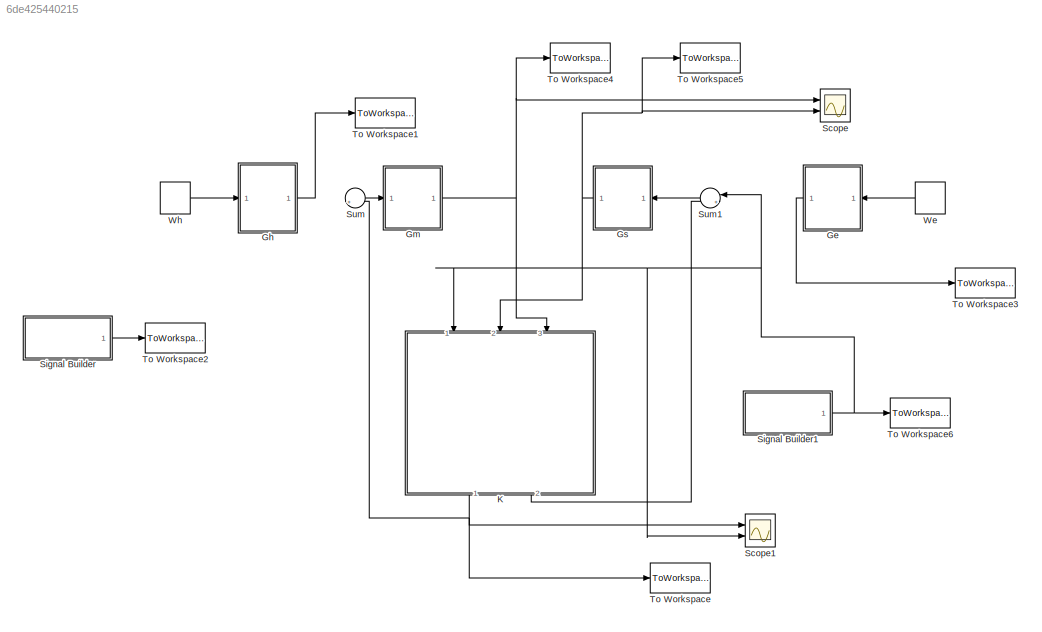
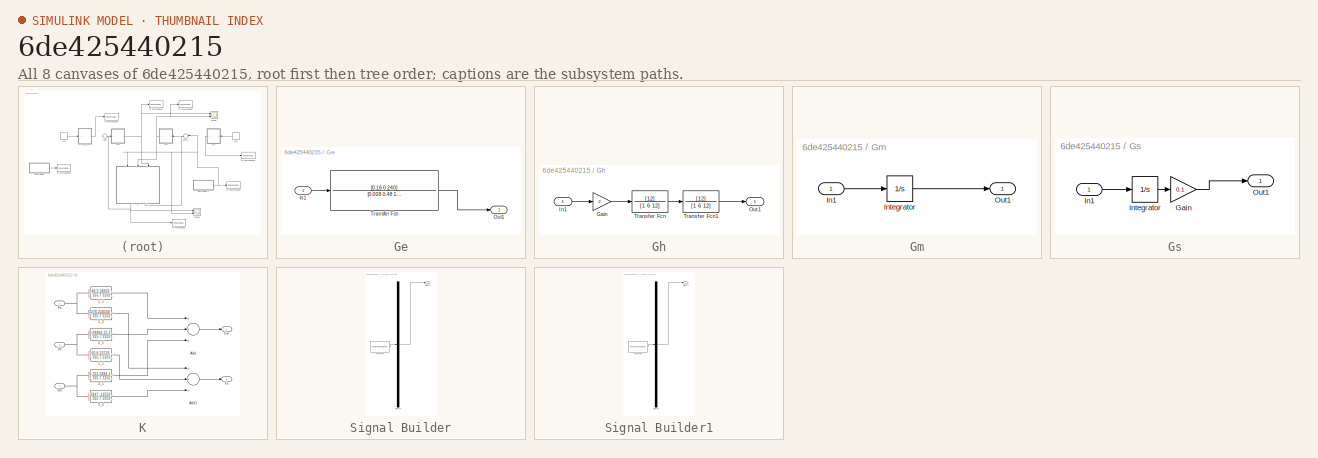
[diagram: thumbnail index - all 8 canvases of the model, root first then tree order]
MODEL slx_6de425440215
KIND model
CONFIG AbsTol = auto
CONFIG FixedStep = auto
CONFIG MaxStep = auto
CONFIG MinStep = auto
CONFIG RelTol = 1e-3
CONFIG SampleTimeConstraint = Unconstrained
CONFIG Solver = VariableStepAuto
CONFIG SolverMode = Auto
CONFIG SolverName = VariableStepAuto
CONFIG StartTime = 0.0
CONFIG StopTime = 10
BLOCK [SubSystem] Ge
  Ports = [1, 1]
  RequestExecContextInheritance = off
  Variant = off
BLOCK [Inport] Ge/In1
  IconDisplay = Port number
BLOCK [Outport] Ge/Out1
  IconDisplay = Port number
BLOCK [TransferFcn] Ge/Transfer Fcn
  Denominator = [0.008 0.48 12 120]
  Numerator = [0.16 0 240]
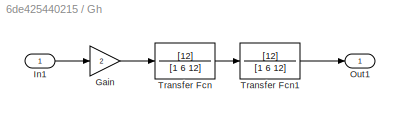
BLOCK [SubSystem] Gh
  Ports = [1, 1]
  RequestExecContextInheritance = off
  Variant = off
BLOCK [Gain] Gh/Gain
  Gain = 2
  OutDataTypeStr = Inherit: Inherit via internal rule
  ParamDataTypeStr = Inherit: Inherit via internal rule
  SaturateOnIntegerOverflow = off
BLOCK [Inport] Gh/In1
  IconDisplay = Port number
BLOCK [Outport] Gh/Out1
  IconDisplay = Port number
BLOCK [TransferFcn] Gh/Transfer Fcn
  Denominator = [1 6 12]
  Numerator = [12]
BLOCK [TransferFcn] Gh/Transfer Fcn1
  Denominator = [1 6 12]
  Numerator = [12]
BLOCK [SubSystem] Gm
  Ports = [1, 1]
  RequestExecContextInheritance = off
  Variant = off
BLOCK [Inport] Gm/In1
  IconDisplay = Port number
BLOCK [Integrator] Gm/Integrator
  Ports = [1, 1]
BLOCK [Outport] Gm/Out1
  IconDisplay = Port number
BLOCK [SubSystem] Gs
  Ports = [1, 1]
  RequestExecContextInheritance = off
  Variant = off
BLOCK [Gain] Gs/Gain
  Gain = 0.1
  OutDataTypeStr = Inherit: Inherit via internal rule
  ParamDataTypeStr = Inherit: Inherit via internal rule
  SaturateOnIntegerOverflow = off
BLOCK [Inport] Gs/In1
  IconDisplay = Port number
BLOCK [Integrator] Gs/Integrator
  Ports = [1, 1]
BLOCK [Outport] Gs/Out1
  IconDisplay = Port number
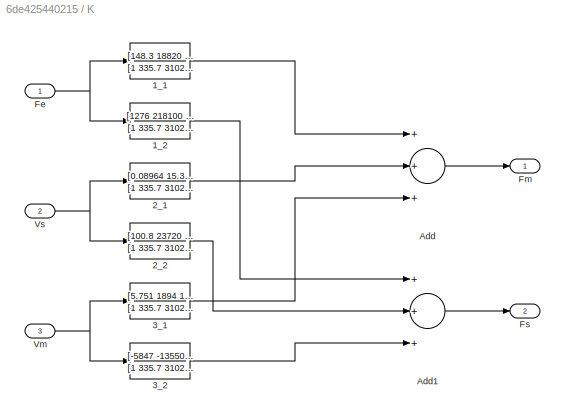
BLOCK [SubSystem] K
  Ports = [3, 2]
  RequestExecContextInheritance = off
  Variant = off
BLOCK [TransferFcn] K/1_1
  Denominator = [1 335.7 31020 1138000 4.555*10^7 6.604*10^8 4.954*10^9 2.22*10^10 6.027*10^10 8.233*10^10]
  Numerator = [148.3 18820 716100 3.695*10^7 5.545*10^8 4.28*10^9 1.985*10^10 5.593*10^10 7.853*10^10]
BLOCK [TransferFcn] K/1_2
  Denominator = [1 335.7 31020 1138000 4.555*10^7 6.604*10^8 4.954*10^9 2.22*10^10 6.027*10^10 8.233*10^10]
  Numerator = [1276 218100 7304000 3.914*10^8 4.397*10^9 2.309*10^10 6.563*10^10 1.053*10^11 8.622*10^10]
BLOCK [TransferFcn] K/2_1
  Denominator = [1 335.7 31020 1138000 4.555*10^7 6.604*10^8 4.954*10^9 2.22*10^10 6.027*10^10 8.233*10^10]
  Numerator = [0.08964 15.32 908 29960 394400 2858000 1.273*10^7 3.47*10^7 4.709*10^7]
BLOCK [TransferFcn] K/2_2
  Denominator = [1 335.7 31020 1138000 4.555*10^7 6.604*10^8 4.954*10^9 2.22*10^10 6.027*10^10 8.233*10^10]
  Numerator = [100.8 23720 750500 3.959*10^7 6.141*10^8 4.739*10^9 2.158*10^10 5.934*10^10 8.215*10^10]
BLOCK [TransferFcn] K/3_1
  Denominator = [1 335.7 31020 1138000 4.555*10^7 6.604*10^8 4.954*10^9 2.22*10^10 6.027*10^10 8.233*10^10]
  Numerator = [5.751 1894 166900 5602000 2.286*10^8 2.508*10^9 1.306*10^10 3.533*10^10 4.325*10^10]
BLOCK [TransferFcn] K/3_2
  Denominator = [1 335.7 31020 1138000 4.555*10^7 6.604*10^8 4.954*10^9 2.22*10^10 6.027*10^10 8.233*10^10]
  Numerator = [-5847 -1355000 -3.831*10^7 -2.155*10^9 -2.756*10^10 -1.678*10^11 -5.494*10^11 -8.528*10^11 -7.986*10^10]
BLOCK [Sum] K/Add
  InputSameDT = off
  Inputs = +++
  OutDataTypeStr = Inherit: Inherit via internal rule
  Ports = [3, 1]
  SaturateOnIntegerOverflow = off
BLOCK [Sum] K/Add1
  InputSameDT = off
  Inputs = +++
  OutDataTypeStr = Inherit: Inherit via internal rule
  Ports = [3, 1]
  SaturateOnIntegerOverflow = off
BLOCK [Inport] K/Fe
  IconDisplay = Port number
BLOCK [Outport] K/Fm
  IconDisplay = Port number
BLOCK [Outport] K/Fs
  IconDisplay = Port number
  Port = 2
BLOCK [Inport] K/Vm
  IconDisplay = Port number
  Port = 3
BLOCK [Inport] K/Vs
  IconDisplay = Port number
  Port = 2
BLOCK [Scope] Scope
  NumInputPorts = 2
  Ports = [2]
  ScopeSpecificationString = Simulink.scopes.TimeScopeBlockCfg('CurrentConfiguration', extmgr.ConfigurationSet(extmgr.Configuration('Core','General UI',true),extmgr.Configuration('Core','Source UI',true),extmgr.Configuration('Sources','WiredSimulink',true),extmgr.Configuration('Visuals','Time Domain',true,'SerializedDisplays',{struct('MinYLimReal','-0.15665','MaxYLimReal','1.40989','YLabelReal','','MinYLimMag','0.00000','MaxY...<+1427ch>
BLOCK [Scope] Scope1
  NumInputPorts = 2
  Ports = [2]
  ScopeSpecificationString = Simulink.scopes.TimeScopeBlockCfg('CurrentConfiguration', extmgr.ConfigurationSet(extmgr.Configuration('Core','General UI',true),extmgr.Configuration('Core','Source UI',true),extmgr.Configuration('Sources','WiredSimulink',true,'DataLoggingVariableName','ScopeData1'),extmgr.Configuration('Visuals','Time Domain',true,'SerializedDisplays',{struct('MinYLimReal','-3.53124','MaxYLimReal','11.53042','YLa...<+1482ch>
BLOCK [SubSystem] Signal Builder
  ClipboardFcn = sigbuilder_block('clipboard');
  CloseFcn = sigbuilder_block('close');
  ContinueFcn = sigbuilder_block('continue');
  CopyFcn = sigbuilder_block('copy');
  DeleteFcn = sigbuilder_block('delete');
  LoadFcn = sigbuilder_block('load');
  MaskHideContents = on
  ModelCloseFcn = sigbuilder_block('modelClose');
  NameChangeFcn = sigbuilder_block('namechange');
  OpenFcn = sigbuilder_block('open',[437.25 153.75 550.5 358.5 ]);
  PauseFcn = sigbuilder_block('pause');
  Ports = [0, 1]
  PreSaveFcn = sigbuilder_block('preSave');
  RequestExecContextInheritance = off
  StartFcn = sigbuilder_block('start');
  StopFcn = sigbuilder_block('stop');
  Tag = STV Subsys
  Variant = off
BLOCK [Demux] Signal Builder/Demux
  Outputs = 1
  Ports = [1, 1]
  Tag = STV Demux
BLOCK [FromWorkspace] Signal Builder/FromWs
  SampleTime = 0
  Tag = STV FromWs
  VariableName = tuvar
  ZeroCross = on
BLOCK [Outport] Signal Builder/Signal 1
  IconDisplay = Port number
  Tag = STV Outport
BLOCK [SubSystem] Signal Builder1
  ClipboardFcn = sigbuilder_block('clipboard');
  CloseFcn = sigbuilder_block('close');
  ContinueFcn = sigbuilder_block('continue');
  CopyFcn = sigbuilder_block('copy');
  DeleteFcn = sigbuilder_block('delete');
  LoadFcn = sigbuilder_block('load');
  MaskHideContents = on
  ModelCloseFcn = sigbuilder_block('modelClose');
  NameChangeFcn = sigbuilder_block('namechange');
  OpenFcn = sigbuilder_block('open',[437.25 153.75 550.5 358.5 ]);
  PauseFcn = sigbuilder_block('pause');
  Ports = [0, 1]
  PreSaveFcn = sigbuilder_block('preSave');
  RequestExecContextInheritance = off
  StartFcn = sigbuilder_block('start');
  StopFcn = sigbuilder_block('stop');
  Tag = STV Subsys
  Variant = off
BLOCK [Demux] Signal Builder1/Demux
  Outputs = 1
  Ports = [1, 1]
  Tag = STV Demux
BLOCK [FromWorkspace] Signal Builder1/FromWs
  SampleTime = 0
  Tag = STV FromWs
  VariableName = tuvar
  ZeroCross = on
BLOCK [Outport] Signal Builder1/Signal 1
  IconDisplay = Port number
  Tag = STV Outport
BLOCK [Sum] Sum
  IconShape = round
  InputSameDT = off
  Inputs = |+-
  OutDataTypeStr = Inherit: Inherit via internal rule
  Ports = [2, 1]
  SaturateOnIntegerOverflow = off
BLOCK [Sum] Sum1
  IconShape = round
  InputSameDT = off
  Inputs = |+-
  OutDataTypeStr = Inherit: Inherit via internal rule
  Ports = [2, 1]
  SaturateOnIntegerOverflow = off
BLOCK [ToWorkspace] To Workspace
  FixptAsFi = on
  MaxDataPoints = inf
  Ports = [1]
  SampleTime = -1
  Save2DSignal = 3-D array (concatenate along third dimension)
  SaveFormat = Structure With Time
  VariableName = Fm
BLOCK [ToWorkspace] To Workspace1
  FixptAsFi = on
  MaxDataPoints = inf
  Ports = [1]
  SampleTime = -1
  Save2DSignal = 3-D array (concatenate along third dimension)
  SaveFormat = Structure With Time
  VariableName = Fh
BLOCK [ToWorkspace] To Workspace2
  FixptAsFi = on
  MaxDataPoints = inf
  Ports = [1]
  SampleTime = -1
  Save2DSignal = 3-D array (concatenate along third dimension)
  SaveFormat = Structure With Time
  VariableName = Fh1
BLOCK [ToWorkspace] To Workspace3
  FixptAsFi = on
  MaxDataPoints = inf
  Ports = [1]
  SampleTime = -1
  Save2DSignal = 3-D array (concatenate along third dimension)
  SaveFormat = Structure With Time
  VariableName = Fe
BLOCK [ToWorkspace] To Workspace4
  FixptAsFi = on
  MaxDataPoints = inf
  Ports = [1]
  SampleTime = -1
  Save2DSignal = 3-D array (concatenate along third dimension)
  SaveFormat = Structure With Time
  VariableName = Vm
BLOCK [ToWorkspace] To Workspace5
  FixptAsFi = on
  MaxDataPoints = inf
  Ports = [1]
  SampleTime = -1
  Save2DSignal = 3-D array (concatenate along third dimension)
  SaveFormat = Structure With Time
  VariableName = Vs
BLOCK [ToWorkspace] To Workspace6
  FixptAsFi = on
  MaxDataPoints = inf
  Ports = [1]
  SampleTime = -1
  Save2DSignal = 3-D array (concatenate along third dimension)
  SaveFormat = Structure With Time
  VariableName = Fe1
BLOCK [DiscretePulseGenerator] We
  Amplitude = 5000
  Period = 20
  Ports = [0, 1]
  PulseType = Time based
  PulseWidth = 0.001
BLOCK [DiscretePulseGenerator] Wh
  Amplitude = 50000000
  Period = 20
  Ports = [0, 1]
  PulseType = Time based
  PulseWidth = 0.0000001
LINE Ge/In1:1 -> Ge/Transfer Fcn:1
LINE Ge/Transfer Fcn:1 -> Ge/Out1:1
LINE Ge:1 -> To Workspace3:1
LINE Gh/Gain:1 -> Gh/Transfer Fcn:1
LINE Gh/In1:1 -> Gh/Gain:1
LINE Gh/Transfer Fcn1:1 -> Gh/Out1:1
LINE Gh/Transfer Fcn:1 -> Gh/Transfer Fcn1:1
LINE Gh:1 -> To Workspace1:1
LINE Gm/In1:1 -> Gm/Integrator:1
LINE Gm/Integrator:1 -> Gm/Out1:1
NET Gm:1 -> K:3, Scope:1, To Workspace4:1
LINE Gs/Gain:1 -> Gs/Out1:1
LINE Gs/In1:1 -> Gs/Integrator:1
LINE Gs/Integrator:1 -> Gs/Gain:1
NET Gs:1 -> K:2, Scope:2, To Workspace5:1
LINE K/1_1:1 -> K/Add:1
LINE K/1_2:1 -> K/Add1:1
LINE K/2_1:1 -> K/Add:2
LINE K/2_2:1 -> K/Add1:2
LINE K/3_1:1 -> K/Add:3
LINE K/3_2:1 -> K/Add1:3
LINE K/Add1:1 -> K/Fs:1
LINE K/Add:1 -> K/Fm:1
NET K/Fe:1 -> K/1_1:1, K/1_2:1
NET K/Vm:1 -> K/3_1:1, K/3_2:1
NET K/Vs:1 -> K/2_1:1, K/2_2:1
NET K:1 -> Scope1:1, Sum:2, To Workspace:1
LINE K:2 -> Sum1:2
NET Signal Builder1:1 -> K:1, Scope1:2, Sum1:1, To Workspace6:1
LINE Signal Builder:1 -> To Workspace2:1
LINE Sum1:1 -> Gs:1
LINE Sum:1 -> Gm:1
LINE We:1 -> Ge:1
LINE Wh:1 -> Gh:1
note: NET lines group one-source signal fan-out (src -> all destinations, sorted); 1:1 wires keep LINE
